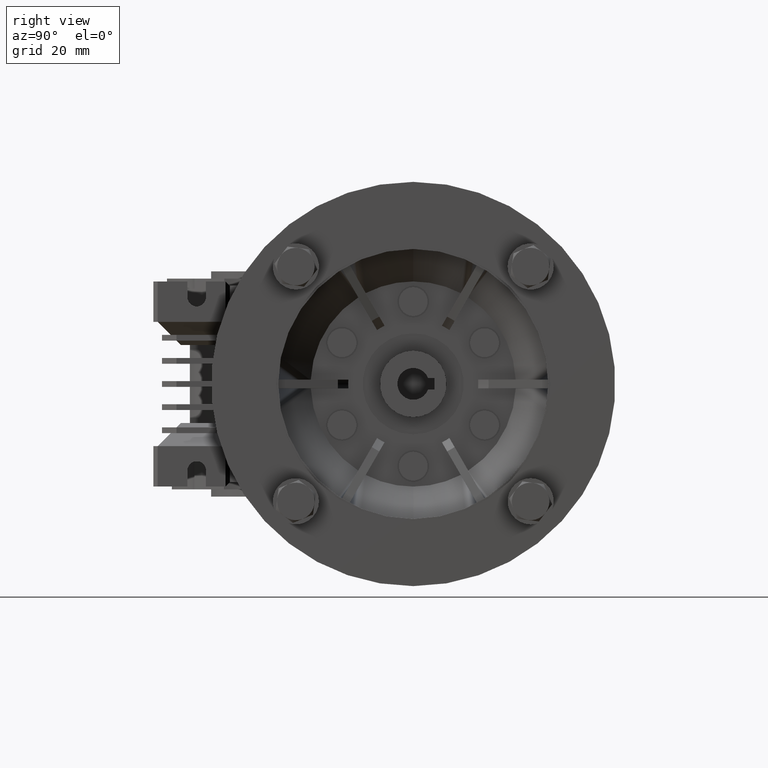
[diagram: clean part render]
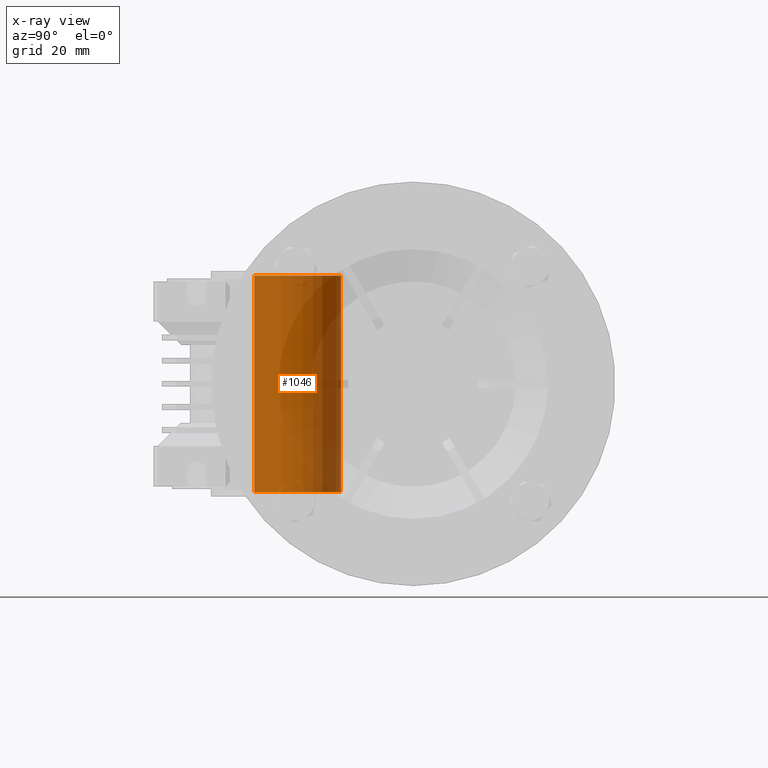
[diagram: x-ray — body ghosted, one internal face saturated and labeled with its STEP entity id]
A machine part, right view, then the same camera in x-ray: the body is ghosted and one INTERNAL B-rep face — a face not visible from any outside direction — is saturated and labeled: STEP entity #1046.
In plain terms, the highlighted cylindrical surface (partial cylindrical patch) has radius 15 mm, axis along (0, 0, 1).
Its self-contained STEP definition (entity closure, byte-faithful):
#439 = ORIENTED_EDGE ( 'NONE', *, *, #25428, .T. ) ;
#1046 = ADVANCED_FACE ( 'NONE', ( #5614 ), #31215, .F. ) ;
#1980 = LINE ( 'NONE', #7004, #8526 ) ;
#3215 = VERTEX_POINT ( 'NONE', #20694 ) ;
#4816 = DIRECTION ( 'NONE',  ( 0.000000000000000000, 1.000000000000000000, 0.000000000000000000 ) ) ;
#4824 = LINE ( 'NONE', #9677, #29835 ) ;
#4842 = ORIENTED_EDGE ( 'NONE', *, *, #5811, .F. ) ;
#5332 = AXIS2_PLACEMENT_3D ( 'NONE', #11186, #24482, #21724 ) ;
#5614 = FACE_OUTER_BOUND ( 'NONE', #20300, .T. ) ;
#5811 = EDGE_CURVE ( 'NONE', #32407, #3215, #28292, .T. ) ;
#7004 = CARTESIAN_POINT ( 'NONE',  ( 0.000000000000000000, 15.00000000000000000, -39.00000000000000000 ) ) ;
#8526 = VECTOR ( 'NONE', #17534, 1000.000000000000000 ) ;
#9677 = CARTESIAN_POINT ( 'NONE',  ( -1.836970198721029589E-15, -15.00000000000000000, -39.00000000000000000 ) ) ;
#11186 = CARTESIAN_POINT ( 'NONE',  ( 0.000000000000000000, 0.000000000000000000, 37.50000000000000000 ) ) ;
#11271 = EDGE_CURVE ( 'NONE', #3215, #33327, #1980, .T. ) ;
#11742 = CARTESIAN_POINT ( 'NONE',  ( -1.836970198721029589E-15, -15.00000000000000000, -37.50000000000000000 ) ) ;
#12155 = CIRCLE ( 'NONE', #5332, 15.00000000000000000 ) ;
#15226 = CARTESIAN_POINT ( 'NONE',  ( 0.000000000000000000, 15.00000000000000000, 37.50000000000000000 ) ) ;
#17534 = DIRECTION ( 'NONE',  ( 0.000000000000000000, 0.000000000000000000, 1.000000000000000000 ) ) ;
#17937 = ORIENTED_EDGE ( 'NONE', *, *, #11271, .F. ) ;
#20023 = CARTESIAN_POINT ( 'NONE',  ( -1.836970198721029589E-15, -15.00000000000000000, 37.50000000000000000 ) ) ;
#20300 = EDGE_LOOP ( 'NONE', ( #4842, #439, #33098, #17937 ) ) ;
#20694 = CARTESIAN_POINT ( 'NONE',  ( 0.000000000000000000, 15.00000000000000000, -37.50000000000000000 ) ) ;
#21724 = DIRECTION ( 'NONE',  ( 0.000000000000000000, 1.000000000000000000, 0.000000000000000000 ) ) ;
#23126 = DIRECTION ( 'NONE',  ( 0.000000000000000000, 0.000000000000000000, 1.000000000000000000 ) ) ;
#23348 = AXIS2_PLACEMENT_3D ( 'NONE', #26171, #24558, #31520 ) ;
#24482 = DIRECTION ( 'NONE',  ( 0.000000000000000000, 0.000000000000000000, -1.000000000000000000 ) ) ;
#24558 = DIRECTION ( 'NONE',  ( 0.000000000000000000, 0.000000000000000000, 1.000000000000000000 ) ) ;
#25385 = DIRECTION ( 'NONE',  ( 0.000000000000000000, 0.000000000000000000, 1.000000000000000000 ) ) ;
#25428 = EDGE_CURVE ( 'NONE', #32407, #32582, #4824, .T. ) ;
#26171 = CARTESIAN_POINT ( 'NONE',  ( 0.000000000000000000, 0.000000000000000000, -37.50000000000000000 ) ) ;
#28292 = CIRCLE ( 'NONE', #23348, 15.00000000000000000 ) ;
#28459 = CARTESIAN_POINT ( 'NONE',  ( 0.000000000000000000, 0.000000000000000000, -39.00000000000000000 ) ) ;
#28767 = EDGE_CURVE ( 'NONE', #33327, #32582, #12155, .T. ) ;
#29155 = AXIS2_PLACEMENT_3D ( 'NONE', #28459, #23126, #4816 ) ;
#29835 = VECTOR ( 'NONE', #25385, 1000.000000000000000 ) ;
#31215 = CYLINDRICAL_SURFACE ( 'NONE', #29155, 15.00000000000000000 ) ;
#31520 = DIRECTION ( 'NONE',  ( 0.000000000000000000, 1.000000000000000000, 0.000000000000000000 ) ) ;
#32407 = VERTEX_POINT ( 'NONE', #11742 ) ;
#32582 = VERTEX_POINT ( 'NONE', #20023 ) ;
#33098 = ORIENTED_EDGE ( 'NONE', *, *, #28767, .F. ) ;
#33327 = VERTEX_POINT ( 'NONE', #15226 ) ;